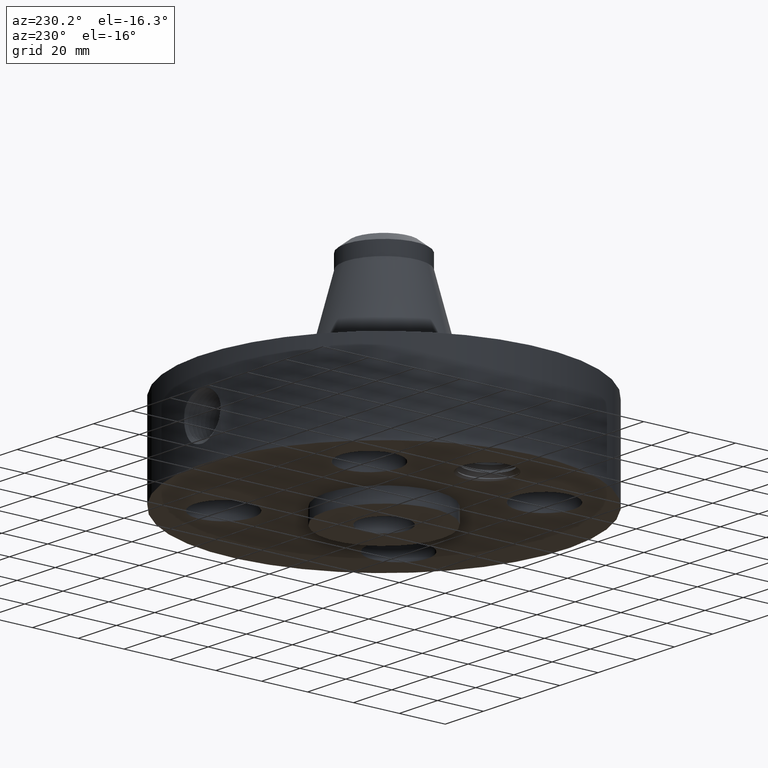
[diagram: clean part render]
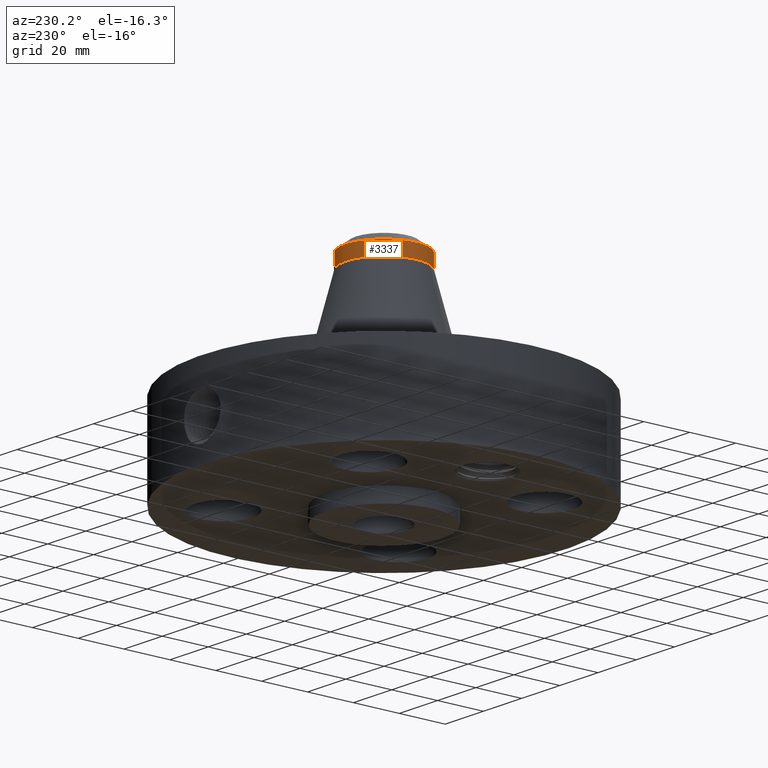
[diagram: same view with one face highlighted and labeled with its STEP entity id]
A machine part, auxiliary view. The second image highlights one B-rep face of the part: STEP entity #3337.
In plain terms, the highlighted cylindrical surface (partial cylindrical patch) has radius 16.764 mm, axis along (0, 0, -1).
Its self-contained STEP definition (entity closure, byte-faithful):
#2459=AXIS2_PLACEMENT_3D('Circle Axis2P3D',#2457,#2458,$) ;
#3282=AXIS2_PLACEMENT_3D('Cylinder Axis2P3D',#3279,#3280,#3281) ;
#3320=AXIS2_PLACEMENT_3D('Circle Axis2P3D',#3318,#3319,$) ;
#3327=AXIS2_PLACEMENT_3D('Circle Axis2P3D',#3325,#3326,$) ;
#2435=CARTESIAN_POINT('Vertex',(0.31642085548,0.57920449085,3.50044891098)) ;
#2442=CARTESIAN_POINT('Vertex',(-0.31642085548,-0.57920449085,3.50044891098)) ;
#2457=CARTESIAN_POINT('Axis2P3D Location',(0.,0.,3.50044891098)) ;
#3279=CARTESIAN_POINT('Axis2P3D Location',(0.,0.,1.93500000001)) ;
#3284=CARTESIAN_POINT('Line Origine',(-0.31642085548,-0.57920449085,3.6185591472)) ;
#3288=CARTESIAN_POINT('Vertex',(-0.31642085548,-0.57920449085,3.73666938342)) ;
#3291=CARTESIAN_POINT('Line Origine',(0.31642085548,0.57920449085,3.6185591472)) ;
#3295=CARTESIAN_POINT('Vertex',(0.31642085548,0.57920449085,3.73666938342)) ;
#3318=CARTESIAN_POINT('Axis2P3D Location',(0.,0.,3.73666938342)) ;
#3322=CARTESIAN_POINT('Vertex',(-0.31642085548,0.57920449085,3.73666938342)) ;
#3325=CARTESIAN_POINT('Axis2P3D Location',(0.,0.,3.73666938342)) ;
#2458=DIRECTION('Axis2P3D Direction',(0.,0.,-0.0393700787402)) ;
#3280=DIRECTION('Axis2P3D Direction',(0.,0.,-0.0393700787402)) ;
#3281=DIRECTION('Axis2P3D XDirection',(-0.0188750212049,-0.0345504945626,0.)) ;
#3285=DIRECTION('Vector Direction',(0.,0.,-0.0393700787402)) ;
#3292=DIRECTION('Vector Direction',(0.,0.,-0.0393700787402)) ;
#3319=DIRECTION('Axis2P3D Direction',(0.,0.,-0.0393700787402)) ;
#3326=DIRECTION('Axis2P3D Direction',(0.,0.,-0.0393700787402)) ;
#3286=VECTOR('Line Direction',#3285,0.0393700787402) ;
#3293=VECTOR('Line Direction',#3292,0.0393700787402) ;
#3331=ORIENTED_EDGE('',*,*,#3297,.F.) ;
#3332=ORIENTED_EDGE('',*,*,#2461,.F.) ;
#3333=ORIENTED_EDGE('',*,*,#3290,.T.) ;
#3334=ORIENTED_EDGE('',*,*,#3324,.F.) ;
#3335=ORIENTED_EDGE('',*,*,#3329,.T.) ;
#3337=ADVANCED_FACE('PartBody',(#3336),#3283,.T.) ;
#2460=CIRCLE('generated circle',#2459,0.660000000003) ;
#3321=CIRCLE('generated circle',#3320,0.660000000003) ;
#3328=CIRCLE('generated circle',#3327,0.660000000003) ;
#3283=CYLINDRICAL_SURFACE('generated cylinder',#3282,0.660000000003) ;
#2461=EDGE_CURVE('',#2443,#2436,#2460,.T.) ;
#3290=EDGE_CURVE('',#2443,#3289,#3287,.F.) ;
#3297=EDGE_CURVE('',#2436,#3296,#3294,.F.) ;
#3324=EDGE_CURVE('',#3323,#3289,#3321,.F.) ;
#3329=EDGE_CURVE('',#3323,#3296,#3328,.T.) ;
#3330=EDGE_LOOP('',(#3331,#3332,#3333,#3334,#3335)) ;
#3336=FACE_OUTER_BOUND('',#3330,.T.) ;
#3287=LINE('Line',#3284,#3286) ;
#3294=LINE('Line',#3291,#3293) ;
#2436=VERTEX_POINT('',#2435) ;
#2443=VERTEX_POINT('',#2442) ;
#3289=VERTEX_POINT('',#3288) ;
#3296=VERTEX_POINT('',#3295) ;
#3323=VERTEX_POINT('',#3322) ;